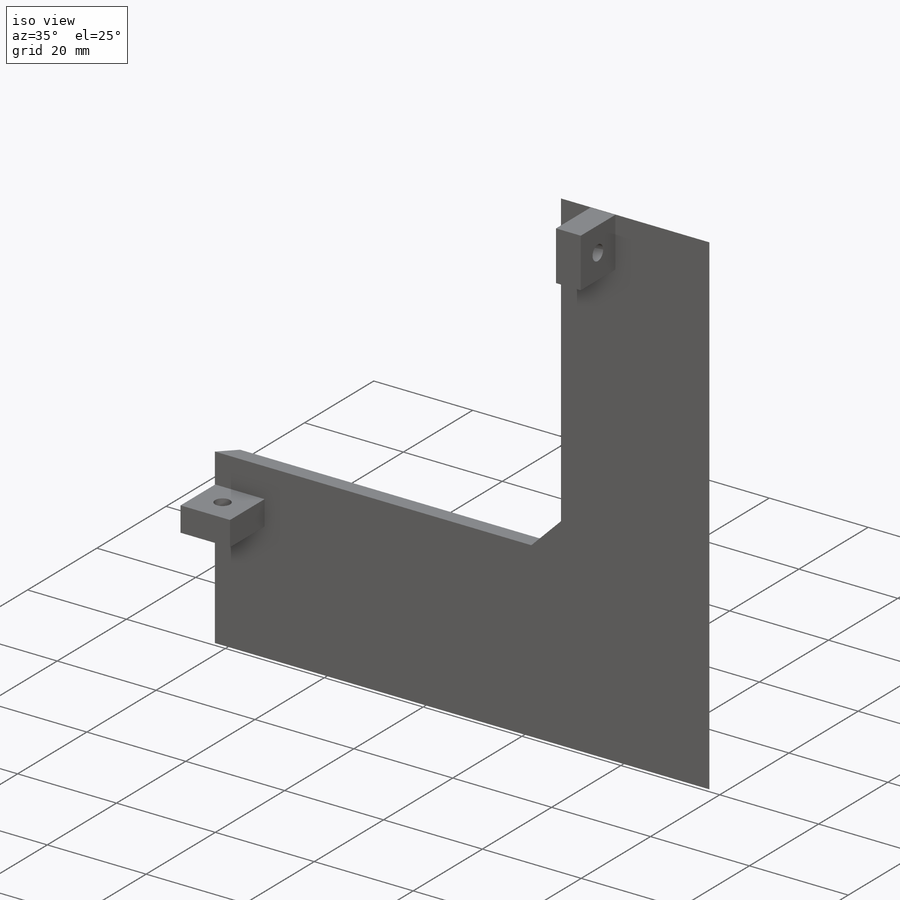
[diagram: iso view]
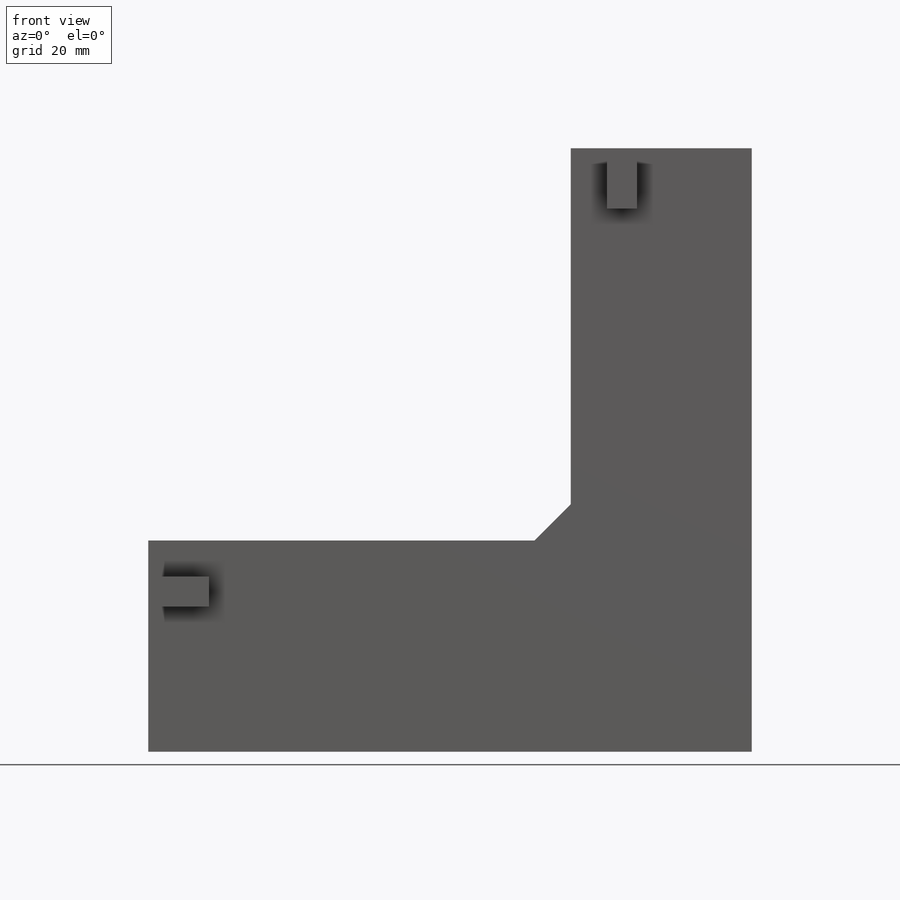
[diagram: front view]
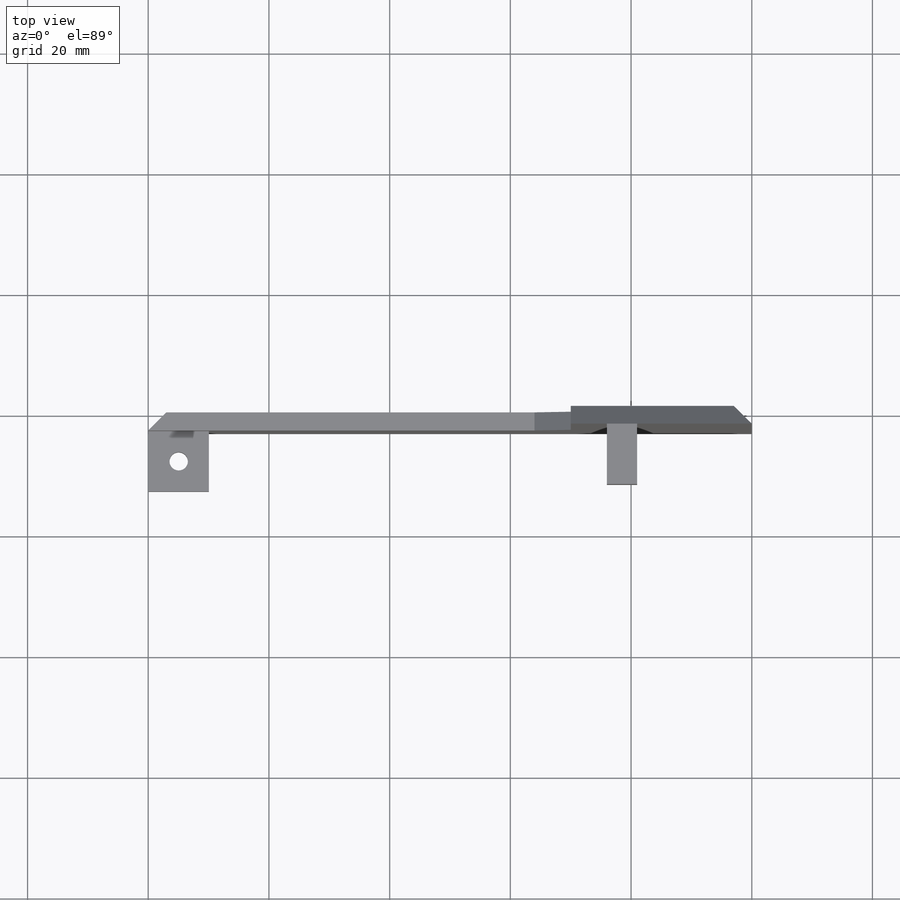
[diagram: top view]
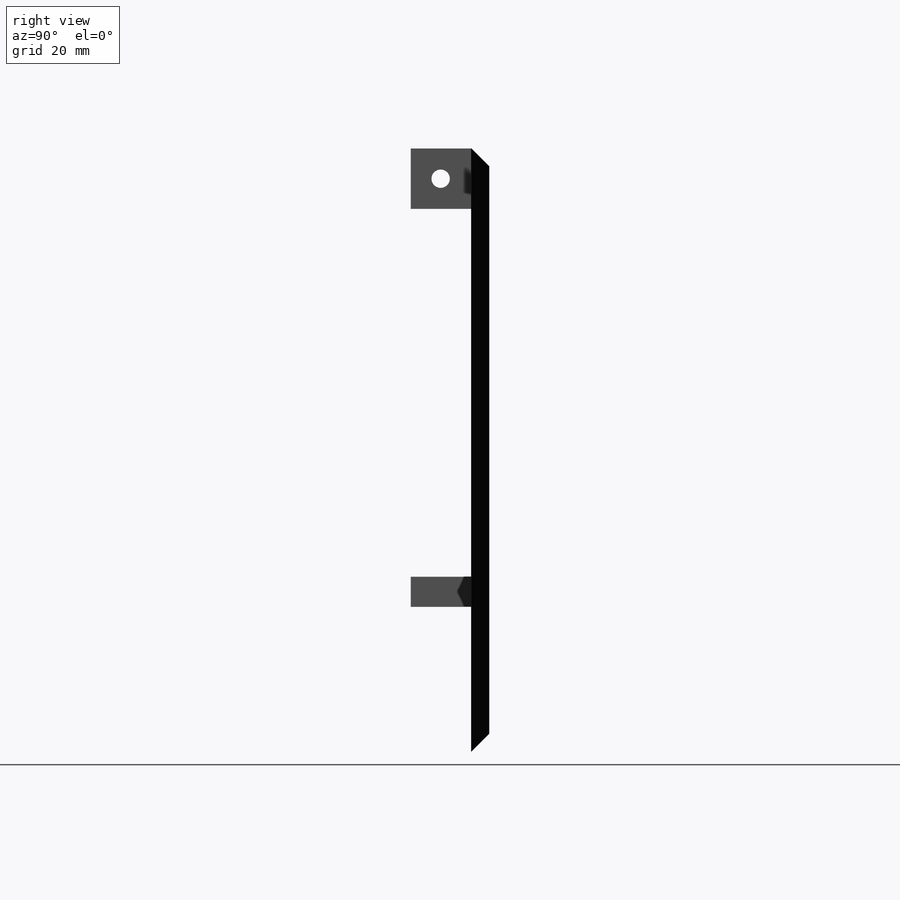
[diagram: right view]
SOLIDWORKS PART (.sldprt)
format: sldprt  version: not decoded by parser v0  size: 212,992 bytes
history: native  units: mm
features: sketch x5, plane x3, cut_extrude x3, extrude x2, chamfer x2, material x1 (+9 scaffold rows collapsed)
feature tree (25):
  scaffold x9  (default folders/planes/origin — collapsed)
  material  "Matériau <non spécifié>"
  plane  "Plan de face"
  plane  "Plan de dessus"
  plane  "Plan de droite"
  sketch  "Esquisse1"  dims[D1=100.0mm D2=100.0mm]
  extrude  "Boss.-Extru.1"  Depth=3mm
  chamfer  "Chanfrein2"  Distance=3mm Angle=45deg
  sketch  "Esquisse4"  dims[c1.D1=5.0mm c1.D2=10.0mm c1.D3=0.05mm c1.D4=35.0mm c1.D5=5.0mm c1.D6=10.0mm c1.D7=0.05mm c1.D8=24.0mm c2.D4=19.0mm]
  extrude  "Boss.-Extru.3"  Depth=10mm
  sketch  "Esquisse5"  dims[c1.D1=3.05mm c1.D2=5.05mm c1.D3=~5.970123mm c2.D2=5.05mm c2.D3=5.0mm]
  cut_extrude  "Enlèv. mat.-Extru.2"  Depth=10mm
  sketch  "Esquisse6"  dims[c1.D1=3.05mm c1.D2=3.4mm c1.D3=3.4mm c2.D2=5.0mm c2.D3=5.0mm]
  cut_extrude  "Enlèv. mat.-Extru.3"  Depth=10mm
  sketch  "Esquisse7"  dims[c1.D1=0.05mm c1.D2=0.05mm c2.D1=30.0mm c2.D3=29.05mm c2.D2=35.0mm]
  cut_extrude  "Enlèv. mat.-Extru.4"  Depth=10mm
  chamfer  "Chanfrein3"  Distance=6mm Angle=45deg
decode coverage: 12 of 12 modeling features carry decoded parameters
note: ~ marks probable driven/reference dimensions
note: suppression state not decoded; provenance and decode notes live in map.json
